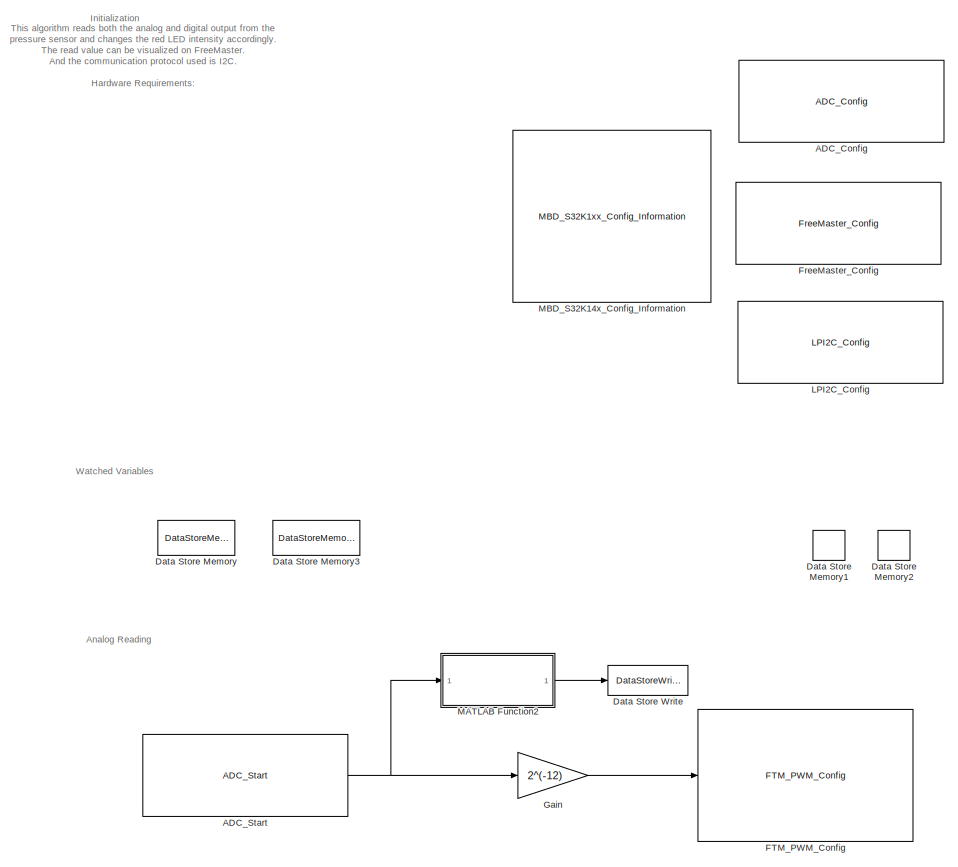
[diagram: root canvas - part 1/2, full width, middle band]
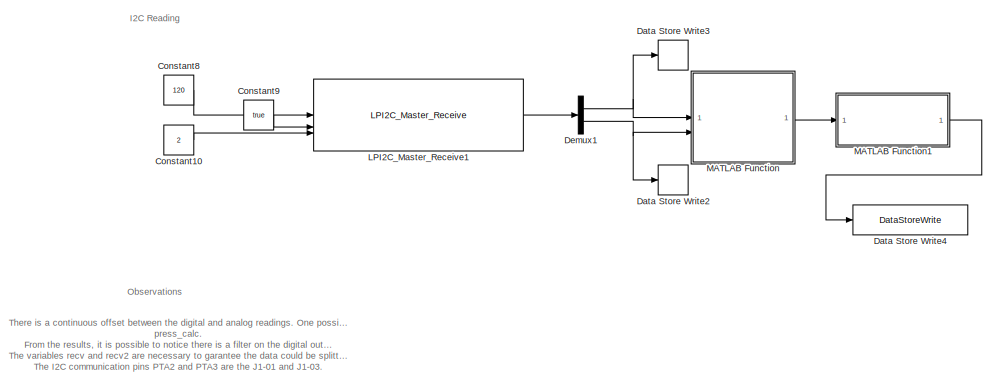
[diagram: root canvas - part 2/2, full width, bottom band]
MODEL slx_f1a046fdd744
KIND model
CONFIG AbsTol = auto
CONFIG EnableMultiTasking = on
CONFIG FixedStep = auto
CONFIG InitFcn = mbd_s32k_consistency_checks(bdroot(gcs));
CONFIG MaxStep = auto
CONFIG MinStep = auto
CONFIG RelTol = 1e-3
CONFIG SampleTimeConstraint = Unconstrained
CONFIG SolverName = FixedStepDiscrete
CONFIG StartTime = 0.0
CONFIG StopTime = inf
WORKSPACE source: mxarray member
WORKSPACE mwTaskManagerKernelLatency = 1e-06
BLOCK [Reference] ADC_Config  REF=mbd_s32k1xx_ec_toolbox/Motor Control Blocks/ADC Blocks/ADC_Config
  SourceBlock = mbd_s32k1xx_ec_toolbox/Motor Control Blocks/ADC Blocks/ADC_Config
  SourceType = adc_s32k_config_block
BLOCK [Reference] ADC_Start  REF=mbd_s32k1xx_ec_toolbox/Motor Control Blocks/ADC Blocks/ADC_Start
  SourceBlock = mbd_s32k1xx_ec_toolbox/Motor Control Blocks/ADC Blocks/ADC_Start
  SourceType = adc_s32k_start_block
BLOCK [Constant] Constant10
  OutDataTypeStr = uint32
  Value = 2
BLOCK [Constant] Constant8
  OutDataTypeStr = uint16
  Value = 120
BLOCK [Constant] Constant9
  OutDataTypeStr = boolean
  Value = true
BLOCK [DataStoreMemory] Data Store Memory
  DataStoreName = pressure_analog
  OutDataTypeStr = uint32
  ShowAdditionalParam = off
  StateMustResolveToSignalObject = on
  WriteAfterWriteMsg = warning
BLOCK [DataStoreMemory] Data Store Memory1
  DataStoreName = recv
  OutDataTypeStr = uint8
  ReadBeforeWriteMsg = warning
  ShowAdditionalParam = off
  WriteAfterReadMsg = warning
  WriteAfterWriteMsg = warning
BLOCK [DataStoreMemory] Data Store Memory2
  DataStoreName = recv2
  OutDataTypeStr = uint8
  ReadBeforeWriteMsg = warning
  ShowAdditionalParam = off
  WriteAfterReadMsg = warning
  WriteAfterWriteMsg = warning
BLOCK [DataStoreMemory] Data Store Memory3
  DataStoreName = pressure_digital
  ShowAdditionalParam = off
  StateMustResolveToSignalObject = on
  WriteAfterWriteMsg = warning
BLOCK [DataStoreWrite] Data Store Write
  DataStoreName = pressure_analog
  IndexOptions = Index vector (dialog)
  Indices = 1
  OutputSizes = 1
BLOCK [DataStoreWrite] Data Store Write2
  DataStoreName = recv2
  IndexOptions = Index vector (dialog)
  Indices = 1
  OutputSizes = 1
BLOCK [DataStoreWrite] Data Store Write3
  DataStoreName = recv
  IndexOptions = Index vector (dialog)
  Indices = 1
  OutputSizes = 1
BLOCK [DataStoreWrite] Data Store Write4
  DataStoreName = pressure_digital
  IndexOptions = Index vector (dialog)
  Indices = 1
  OutputSizes = 1
BLOCK [Demux] Demux1
  Outputs = 2
BLOCK [Reference] FTM_PWM_Config  REF=mbd_s32k1xx_ec_toolbox/Motor Control Blocks/FTM Blocks/FTM_PWM_Config
  SourceBlock = mbd_s32k1xx_ec_toolbox/Motor Control Blocks/FTM Blocks/FTM_PWM_Config
  SourceType = FTM_s32k_pwm_config_block
BLOCK [Reference] FreeMaster_Config  REF=mbd_s32k1xx_ec_toolbox/Utility Blocks/FreeMaster_Config
  SourceBlock = mbd_s32k1xx_ec_toolbox/Utility Blocks/FreeMaster_Config
  SourceType = fm_s32k_config
BLOCK [Gain] Gain
  Gain = 2^(-12)
  ParamDataTypeStr = single
BLOCK [Reference] LPI2C_Config  REF=mbd_s32k1xx_ec_toolbox/Communication Blocks/I2C Blocks/LPI2C_Config
  SourceBlock = mbd_s32k1xx_ec_toolbox/Communication Blocks/I2C Blocks/LPI2C_Config
  SourceType = lpi2c_s32k_config
BLOCK [Reference] LPI2C_Master_Receive1  REF=mbd_s32k1xx_ec_toolbox/Communication Blocks/I2C Blocks/LPI2C_Master_Receive
  SourceBlock = mbd_s32k1xx_ec_toolbox/Communication Blocks/I2C Blocks/LPI2C_Master_Receive
  SourceType = lpi2c_s32k_master_receive
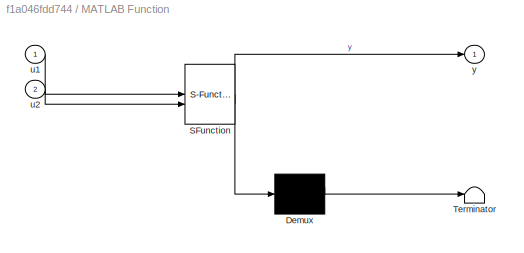
BLOCK [SubSystem] MATLAB Function
  ErrorFcn = Stateflow.Translate.translate
  PermitHierarchicalResolution = ExplicitOnly
  SFBlockType = MATLAB Function
  TreatAsAtomicUnit = on
BLOCK [Demux] MATLAB Function/ Demux 
  Outputs = 1
BLOCK [S-Function] MATLAB Function/ SFunction 
  EnableBusSupport = on
  FunctionName = sf_sfun
  PortCounts = [2 2]
  SFcnIsStateOwnerBlock = off
  SFunctionDeploymentMode = off
  Tag = Stateflow S-Function 2
BLOCK [Terminator] MATLAB Function/ Terminator 
BLOCK [Inport] MATLAB Function/u1
BLOCK [Inport] MATLAB Function/u2
  Port = 2
BLOCK [Outport] MATLAB Function/y
  VectorParamsAs1DForOutWhenUnconnected = off
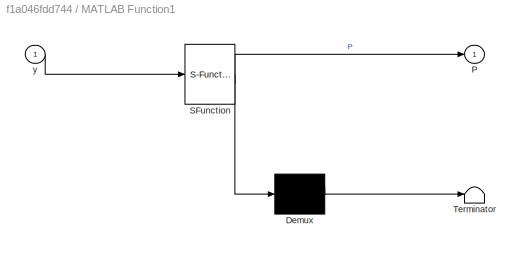
BLOCK [SubSystem] MATLAB Function1
  ErrorFcn = Stateflow.Translate.translate
  PermitHierarchicalResolution = ExplicitOnly
  SFBlockType = MATLAB Function
  TreatAsAtomicUnit = on
BLOCK [Demux] MATLAB Function1/ Demux 
  Outputs = 1
BLOCK [S-Function] MATLAB Function1/ SFunction 
  EnableBusSupport = on
  FunctionName = sf_sfun
  PortCounts = [1 2]
  SFcnIsStateOwnerBlock = off
  SFunctionDeploymentMode = off
  Tag = Stateflow S-Function 1
BLOCK [Terminator] MATLAB Function1/ Terminator 
BLOCK [Outport] MATLAB Function1/P
  VectorParamsAs1DForOutWhenUnconnected = off
BLOCK [Inport] MATLAB Function1/y
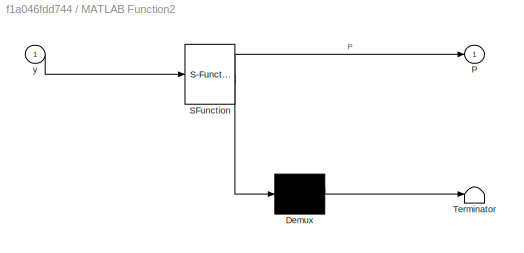
BLOCK [SubSystem] MATLAB Function2
  ErrorFcn = Stateflow.Translate.translate
  PermitHierarchicalResolution = ExplicitOnly
  SFBlockType = MATLAB Function
  TreatAsAtomicUnit = on
BLOCK [Demux] MATLAB Function2/ Demux 
  Outputs = 1
BLOCK [S-Function] MATLAB Function2/ SFunction 
  EnableBusSupport = on
  FunctionName = sf_sfun
  PortCounts = [1 2]
  SFcnIsStateOwnerBlock = off
  SFunctionDeploymentMode = off
  Tag = Stateflow S-Function 3
BLOCK [Terminator] MATLAB Function2/ Terminator 
BLOCK [Outport] MATLAB Function2/P
  VectorParamsAs1DForOutWhenUnconnected = off
BLOCK [Inport] MATLAB Function2/y
BLOCK [Reference] MBD_S32K14x_Config_Information  REF=mbd_s32k1xx_ec_toolbox/MBD_S32K1xx_Config_Information
  Priority = 0
  SourceBlock = mbd_s32k1xx_ec_toolbox/MBD_S32K1xx_Config_Information
  SourceType = MBDTBX_EC_S32K
ANNOTATION (root): Analog Reading
ANNOTATION (root): I2C Reading
ANNOTATION (root): Initialization
ANNOTATION (root): Observations
ANNOTATION (root): There is a continuous offset between the digital and analog readings. One possible solution is to change the range [Out_max Out_min] on the functions press_calc. From the results, it is possible to notice there is a filter on the digital output, because it does not present many oscilations as the analog one. The variables recv and recv2 are necessary to garantee the data could be splitted in two b...<+71ch>
ANNOTATION (root): This algorithm reads both the analog and digital output from the pressure sensor and changes the red LED intensity accordingly. The read value can be visualized on FreeMaster. And the communication protocol used is I2C. Hardware Requirements: - S32K144EVB - HDIB002AUY8P5 Before running this, type on the Command Line: load 'Init_Pressure_Variables' Pin connections: Sensor | Board | Function 5 | 5V ...<+158ch>
ANNOTATION (root): Watched Variables
NET ADC_Start:1 -> Gain:1, MATLAB Function2:1
LINE Constant10:1 -> LPI2C_Master_Receive1:3
LINE Constant8:1 -> LPI2C_Master_Receive1:1
LINE Constant9:1 -> LPI2C_Master_Receive1:2
NET Demux1:1 -> Data Store Write3:1, MATLAB Function:1
NET Demux1:2 -> Data Store Write2:1, MATLAB Function:2
LINE Gain:1 -> FTM_PWM_Config:1
LINE LPI2C_Master_Receive1:1 -> Demux1:1
LINE MATLAB Function1:1 -> Data Store Write4:1
LINE MATLAB Function2:1 -> Data Store Write:1
LINE MATLAB Function:1 -> MATLAB Function1:1
note: NET lines group one-source signal fan-out (src -> all destinations, sorted); 1:1 wires keep LINE
CHART MATLAB Function1 states=1 transitions=1
  STATE_LABEL 'eML_blk_kernel()'
  STATE_LABEL 'SCRIPT:\nfunction P = press_calc_dig (y)\n% Calculate the corresponding pressure based on the digital reading\n\n\n%Pressure range\nPmax = 2000; %mbar\nPmin = 0;\n\n%Digital range\nOut_max_d = 29490;\nOut_min_d = 3277;\n\nS = (Out_max_d - Out_min_d)/(Pmax-Pmin);\nP = (y - Out_min_d)/S + Pmin;'
CHART MATLAB Function states=1 transitions=1
  STATE_LABEL 'eML_blk_kernel()'
  STATE_LABEL "SCRIPT:\nfunction y  = data_mask(u1, u2)\n\n\nu = [u1 u2];\n\nu_bin_mat = int2bit(u, 8);\nu_bin_vec = (reshape(u_bin_mat, 1, []))';\n\ny= bit2int(u_bin_vec, 16);\n\n"
CHART MATLAB Function2 states=1 transitions=1
  STATE_LABEL 'eML_blk_kernel()'
  STATE_LABEL 'SCRIPT:\nfunction P = press_calc_analog (y)\n% Calculate the corresponding pressure based on the analog reading\n\n\n%Pressure range\nPmax = 2000; % mbar\nPmin = 0;\n\n%Analog range\nOut_max_a = 3686.4;\nOut_min_a = 409.6;\n\n\nS = (Out_max_a - Out_min_a)/(Pmax-Pmin);\nP = (y - Out_min_a)/S + Pmin;'
CHART  states=0 transitions=0
CHART  states=0 transitions=0
CHART  states=0 transitions=0
